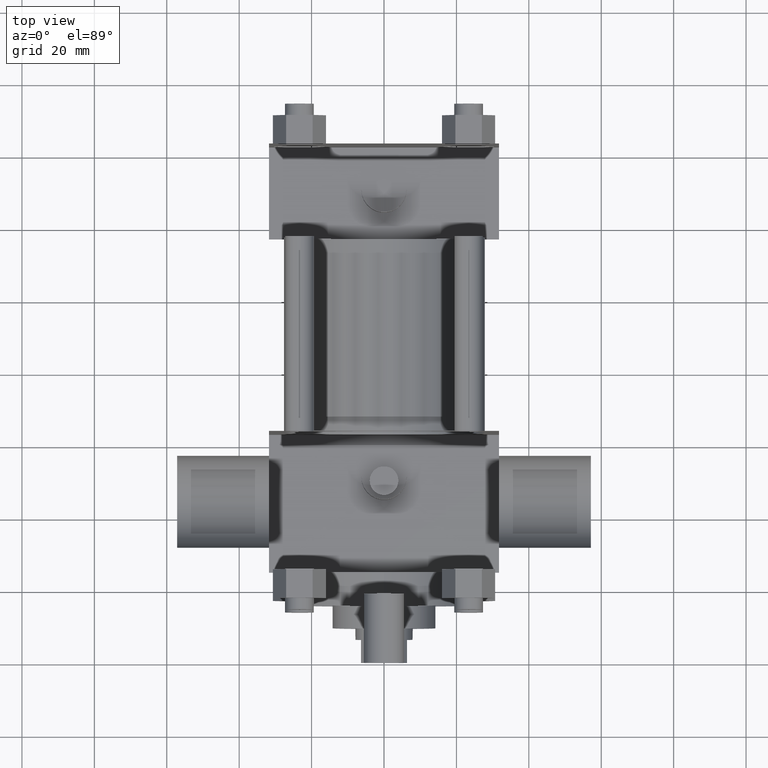
[diagram: clean part render]
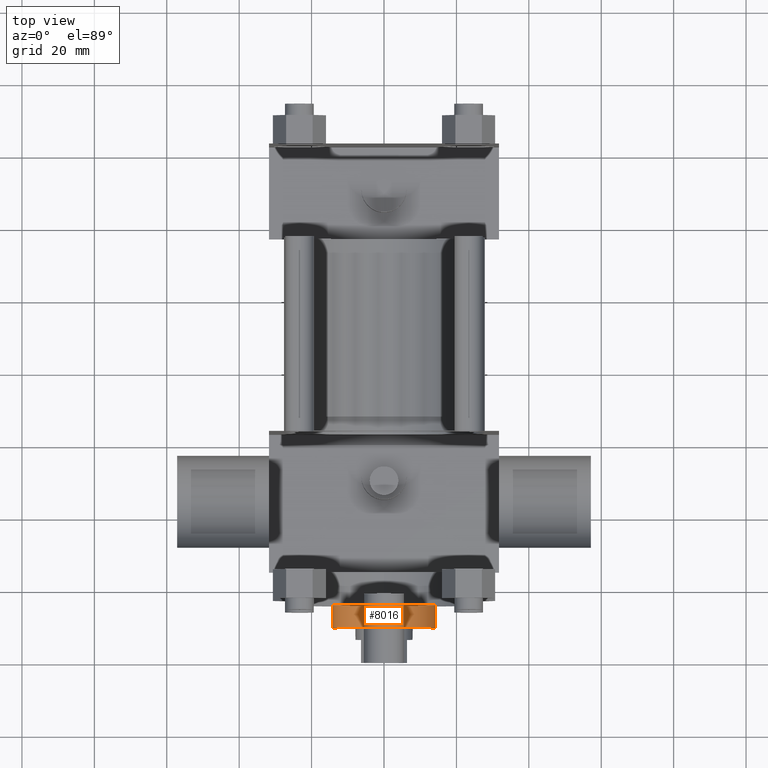
[diagram: same view with one face highlighted and labeled with its STEP entity id]
A machine part, top view. The second image highlights one B-rep face of the part: STEP entity #8016.
In plain terms, the highlighted cylindrical surface (bore or boss wall) has radius 14.2875 mm, axis along (0, -1, 0).
Its self-contained STEP definition (entity closure, byte-faithful):
#414=EDGE_CURVE('',#420,#420,#415,.T.);
#415=CIRCLE('',#416,1.428750000E+001);
#416=AXIS2_PLACEMENT_3D('',#417,#418,#419);
#417=CARTESIAN_POINT('',(0.000000000E+000,1.587500000E+001,0.000000000E+000));
#418=DIRECTION('',(0.0E+000,-1.0E+000,0.0E+000));
#419=DIRECTION('',(0.0E+000,0.0E+000,-1.0E+000));
#420=VERTEX_POINT('',#421);
#421=CARTESIAN_POINT('',(0.000000000E+000,1.587500000E+001,-1.428750000E+001));
#427=FACE_OUTER_BOUND('',#429,.T.);
#428=FACE_BOUND('',#430,.T.);
#429=EDGE_LOOP('',(#431));
#430=EDGE_LOOP('',(#432));
#431=ORIENTED_EDGE('',*,*,#414,.T.);
#432=ORIENTED_EDGE('',*,*,#433,.F.);
#433=EDGE_CURVE('',#439,#439,#434,.T.);
#434=CIRCLE('',#435,1.428750000E+001);
#435=AXIS2_PLACEMENT_3D('',#436,#437,#438);
#436=CARTESIAN_POINT('',(0.000000000E+000,9.525000000E+000,0.000000000E+000));
#437=DIRECTION('',(0.0E+000,-1.0E+000,0.0E+000));
#438=DIRECTION('',(0.0E+000,0.0E+000,-1.0E+000));
#439=VERTEX_POINT('',#440);
#440=CARTESIAN_POINT('',(0.000000000E+000,9.525000000E+000,-1.428750000E+001));
#441=CYLINDRICAL_SURFACE('',#442,1.428750000E+001);
#442=AXIS2_PLACEMENT_3D('',#443,#444,#445);
#443=CARTESIAN_POINT('',(0.000000000E+000,-3.454400000E+001,0.000000000E+000));
#444=DIRECTION('',(0.0E+000,-1.0E+000,0.0E+000));
#445=DIRECTION('',(0.0E+000,0.0E+000,-1.0E+000));
#8016=ADVANCED_FACE('',(#427,#428),#441,.T.);